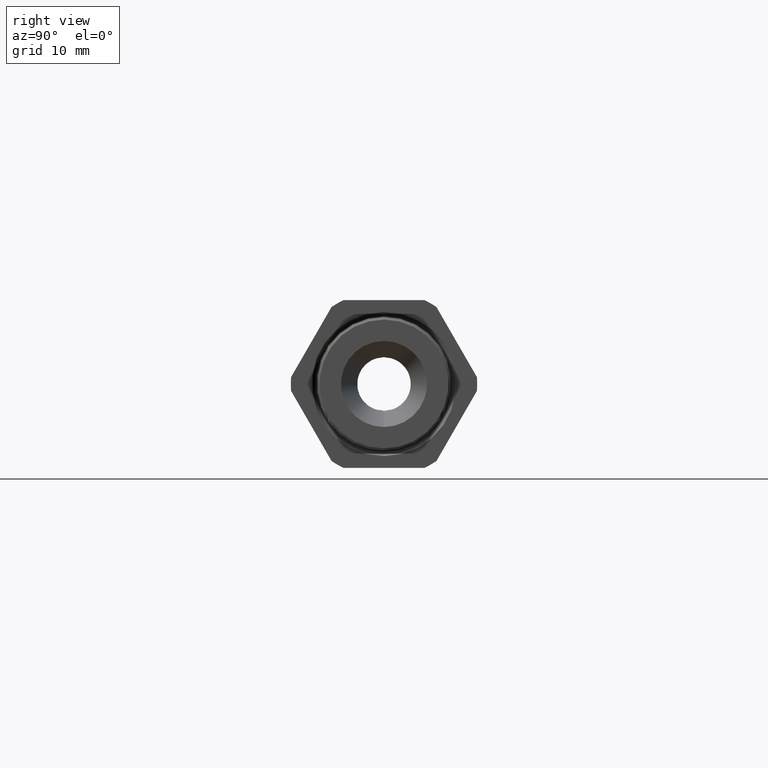
[diagram: clean part render]
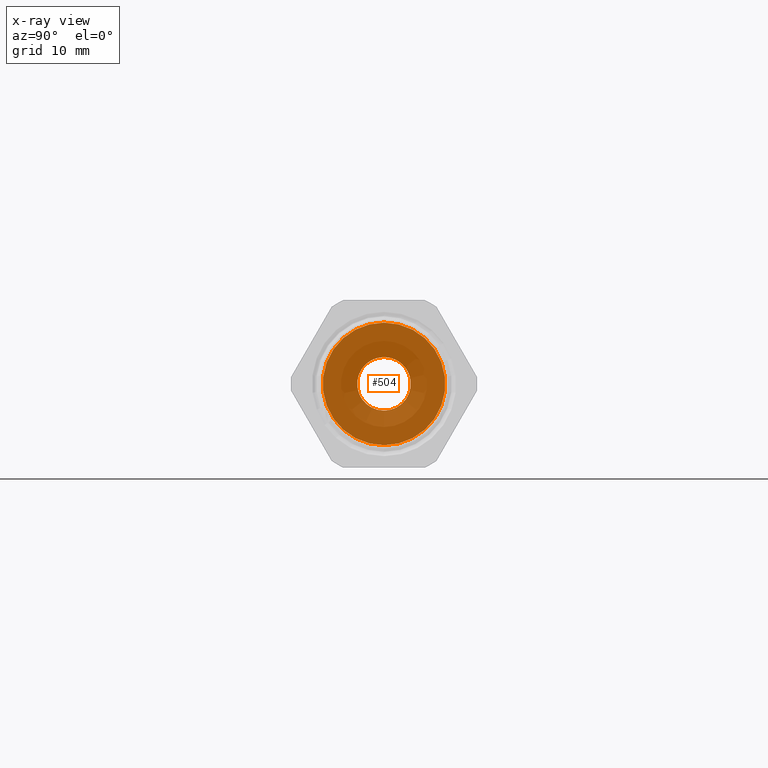
[diagram: x-ray — body ghosted, one internal face saturated and labeled with its STEP entity id]
A machine part, right view, then the same camera in x-ray: the body is ghosted and one INTERNAL B-rep face — a face not visible from any outside direction — is saturated and labeled: STEP entity #504.
In plain terms, the highlighted planar face has unit normal (1, 0, 0).
Its self-contained STEP definition (entity closure, byte-faithful):
#201 = ORIENTED_EDGE ( 'NONE', *, *, #312, .F. ) ;
#205 = EDGE_LOOP ( 'NONE', ( #208, #209 ) ) ;
#208 = ORIENTED_EDGE ( 'NONE', *, *, #8274, .T. ) ;
#209 = ORIENTED_EDGE ( 'NONE', *, *, #503, .T. ) ;
#304 = VERTEX_POINT ( 'NONE', #10183 ) ;
#305 = VERTEX_POINT ( 'NONE', #10182 ) ;
#312 = EDGE_CURVE ( 'NONE', #305, #304, #10179, .T. ) ;
#470 = VERTEX_POINT ( 'NONE', #10257 ) ;
#478 = VERTEX_POINT ( 'NONE', #10254 ) ;
#500 = EDGE_CURVE ( 'NONE', #304, #305, #10283, .T. ) ;
#501 = EDGE_LOOP ( 'NONE', ( #502, #201 ) ) ;
#502 = ORIENTED_EDGE ( 'NONE', *, *, #500, .F. ) ;
#503 = EDGE_CURVE ( 'NONE', #470, #478, #10279, .T. ) ;
#504 = ADVANCED_FACE ( 'NONE', ( #10274, #10273 ), #10272, .T. ) ;
#8274 = EDGE_CURVE ( 'NONE', #478, #470, #10867, .T. ) ;
#10175 = DIRECTION ( 'NONE',  ( 0.0000000000000000000, 0.0000000000000000000, -1.000000000000000000 ) ) ;
#10176 = DIRECTION ( 'NONE',  ( 1.000000000000000000, 0.0000000000000000000, 0.0000000000000000000 ) ) ;
#10177 = CARTESIAN_POINT ( 'NONE',  ( -1.073700787401574700, 0.0000000000000000000, 0.0000000000000000000 ) ) ;
#10178 = AXIS2_PLACEMENT_3D ( 'NONE', #10177, #10176, #10175 ) ;
#10179 = CIRCLE ( 'NONE', #10178, 0.1200000000000000200 ) ;
#10182 = CARTESIAN_POINT ( 'NONE',  ( -1.073700787401574700, 1.469576158976824300E-017, 0.1200000000000000200 ) ) ;
#10183 = CARTESIAN_POINT ( 'NONE',  ( -1.073700787401574700, 0.0000000000000000000, -0.1200000000000000200 ) ) ;
#10254 = CARTESIAN_POINT ( 'NONE',  ( -1.073700787401574700, 0.0000000000000000000, -0.2737499999999999900 ) ) ;
#10257 = CARTESIAN_POINT ( 'NONE',  ( -1.073700787401574700, 3.352470612665879100E-017, 0.2737499999999999900 ) ) ;
#10268 = DIRECTION ( 'NONE',  ( 0.0000000000000000000, 0.0000000000000000000, -1.000000000000000000 ) ) ;
#10269 = DIRECTION ( 'NONE',  ( 1.000000000000000000, 0.0000000000000000000, 0.0000000000000000000 ) ) ;
#10270 = CARTESIAN_POINT ( 'NONE',  ( -1.073700787401574700, 0.2737499999999999900, 0.0000000000000000000 ) ) ;
#10271 = AXIS2_PLACEMENT_3D ( 'NONE', #10270, #10269, #10268 ) ;
#10272 = PLANE ( 'NONE',  #10271 ) ;
#10273 = FACE_BOUND ( 'NONE', #501, .T. ) ;
#10274 = FACE_OUTER_BOUND ( 'NONE', #205, .T. ) ;
#10275 = DIRECTION ( 'NONE',  ( 0.0000000000000000000, 0.0000000000000000000, -1.000000000000000000 ) ) ;
#10276 = DIRECTION ( 'NONE',  ( 1.000000000000000000, 0.0000000000000000000, 0.0000000000000000000 ) ) ;
#10277 = CARTESIAN_POINT ( 'NONE',  ( -1.073700787401574700, 0.0000000000000000000, 0.0000000000000000000 ) ) ;
#10278 = AXIS2_PLACEMENT_3D ( 'NONE', #10277, #10276, #10275 ) ;
#10279 = CIRCLE ( 'NONE', #10278, 0.2737499999999999900 ) ;
#10280 = DIRECTION ( 'NONE',  ( 0.0000000000000000000, 0.0000000000000000000, -1.000000000000000000 ) ) ;
#10281 = DIRECTION ( 'NONE',  ( 1.000000000000000000, 0.0000000000000000000, 0.0000000000000000000 ) ) ;
#10282 = AXIS2_PLACEMENT_3D ( 'NONE', #10287, #10281, #10280 ) ;
#10283 = CIRCLE ( 'NONE', #10282, 0.1200000000000000200 ) ;
#10287 = CARTESIAN_POINT ( 'NONE',  ( -1.073700787401574700, 0.0000000000000000000, 0.0000000000000000000 ) ) ;
#10863 = DIRECTION ( 'NONE',  ( 0.0000000000000000000, 0.0000000000000000000, -1.000000000000000000 ) ) ;
#10864 = DIRECTION ( 'NONE',  ( 1.000000000000000000, 0.0000000000000000000, 0.0000000000000000000 ) ) ;
#10865 = CARTESIAN_POINT ( 'NONE',  ( -1.073700787401574700, 0.0000000000000000000, 0.0000000000000000000 ) ) ;
#10866 = AXIS2_PLACEMENT_3D ( 'NONE', #10865, #10864, #10863 ) ;
#10867 = CIRCLE ( 'NONE', #10866, 0.2737499999999999900 ) ;